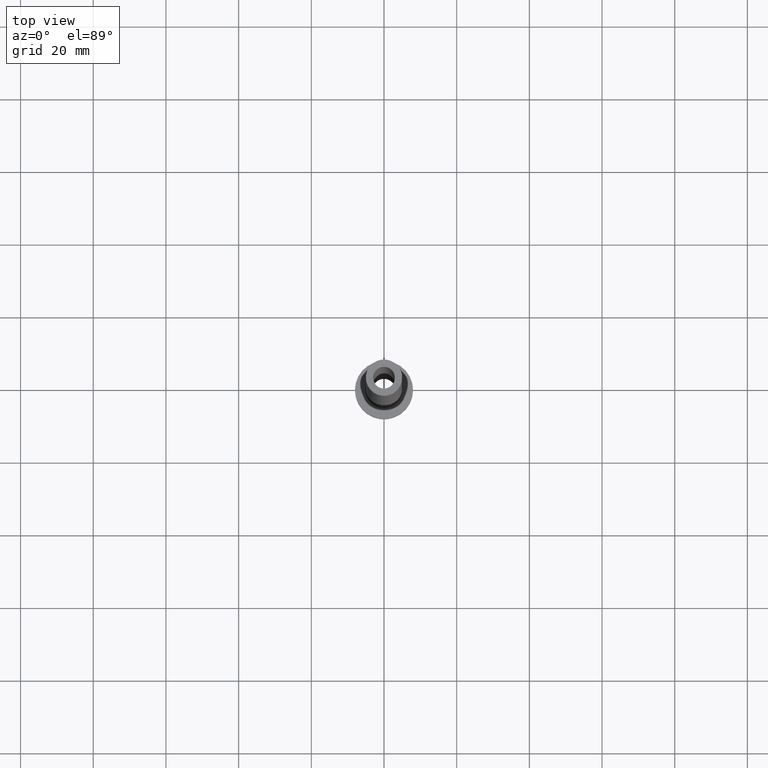
[diagram: clean part render]
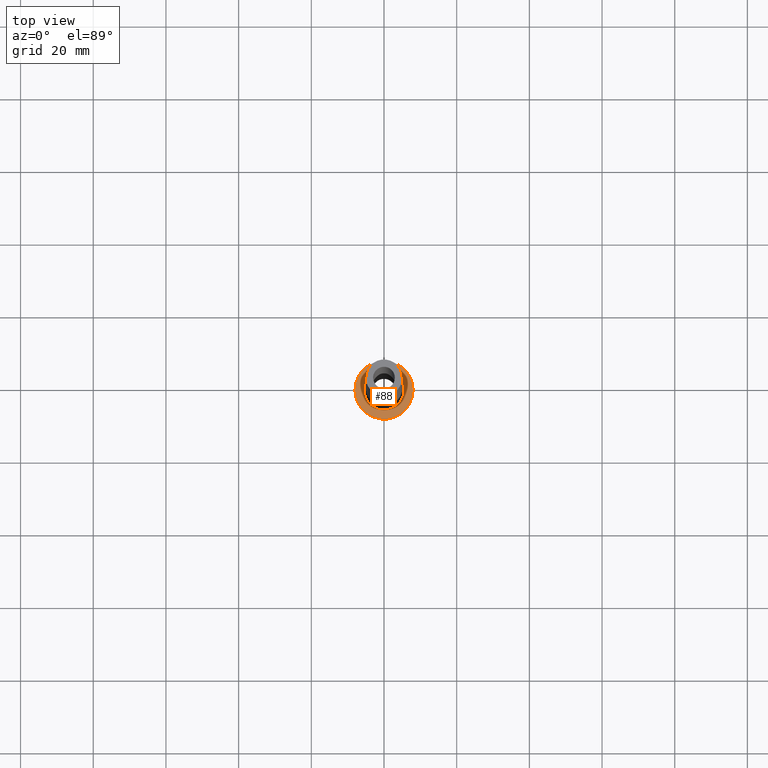
[diagram: same view with one face highlighted and labeled with its STEP entity id]
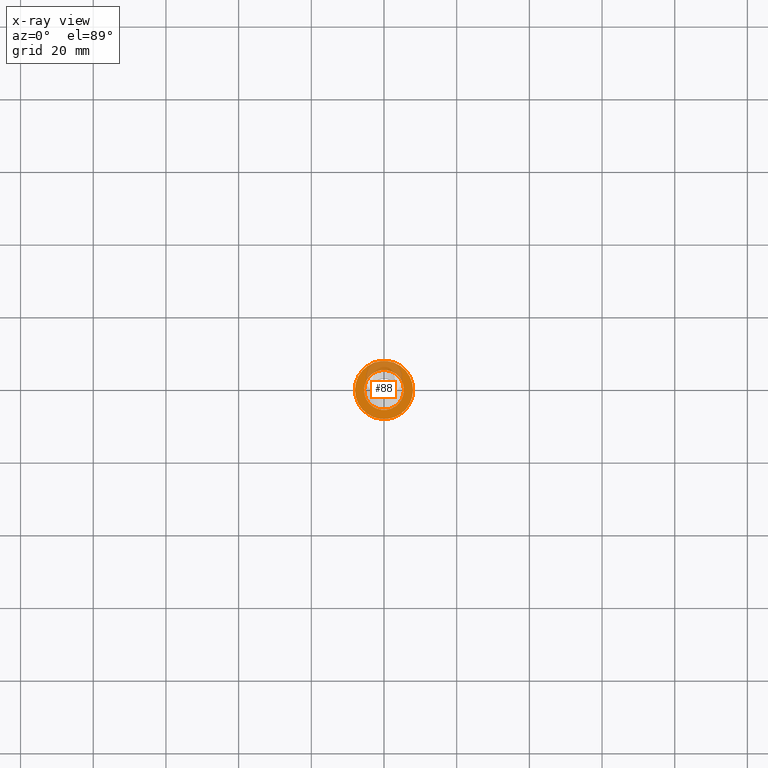
[diagram: x-ray of the same camera — body ghosted, the highlighted face saturated]
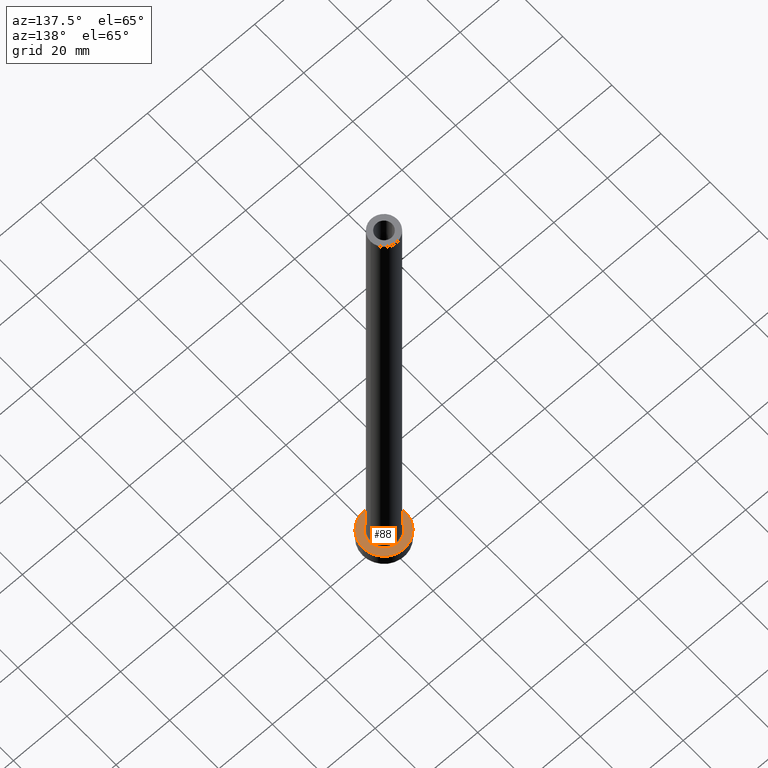
[diagram: same view with one face highlighted and labeled with its STEP entity id]
A machine part, top view. The second image highlights one B-rep face of the part: STEP entity #88.
The next image is the same camera in x-ray: the body ghosted, the highlighted face saturated — about 24% of this face is hidden behind the body in this view.
A second angle (auxiliary view) of the same face is appended — the face is thin or edge-on in the first view.
In plain terms, the highlighted planar face has unit normal (0, 0, 1).
Its self-contained STEP definition (entity closure, byte-faithful):
#21 = CIRCLE ( 'NONE', #181, 8.000000000000000000 ) ;
#25 = ORIENTED_EDGE ( 'NONE', *, *, #124, .T. ) ;
#35 = EDGE_LOOP ( 'NONE', ( #207, #93 ) ) ;
#42 = DIRECTION ( 'NONE',  ( -0.000000000000000000, -0.000000000000000000, -1.000000000000000000 ) ) ;
#57 = EDGE_CURVE ( 'NONE', #338, #125, #173, .T. ) ;
#85 = EDGE_CURVE ( 'NONE', #363, #91, #21, .T. ) ;
#88 = ADVANCED_FACE ( 'NONE', ( #142, #388 ), #150, .T. ) ;
#91 = VERTEX_POINT ( 'NONE', #255 ) ;
#93 = ORIENTED_EDGE ( 'NONE', *, *, #85, .T. ) ;
#101 = CARTESIAN_POINT ( 'NONE',  ( -5.500000000000000000, 6.735557395310442023E-16, 5.000000000000002665 ) ) ;
#107 = CARTESIAN_POINT ( 'NONE',  ( 0.000000000000000000, 0.000000000000000000, 5.000000000000000000 ) ) ;
#124 = EDGE_CURVE ( 'NONE', #125, #338, #135, .T. ) ;
#125 = VERTEX_POINT ( 'NONE', #101 ) ;
#135 = CIRCLE ( 'NONE', #417, 5.500000000000000000 ) ;
#139 = DIRECTION ( 'NONE',  ( 1.000000000000000000, 0.000000000000000000, 0.000000000000000000 ) ) ;
#142 = FACE_BOUND ( 'NONE', #345, .T. ) ;
#150 = PLANE ( 'NONE',  #215 ) ;
#153 = CARTESIAN_POINT ( 'NONE',  ( 0.000000000000000000, 0.000000000000000000, 5.000000000000000000 ) ) ;
#173 = CIRCLE ( 'NONE', #449, 5.500000000000000000 ) ;
#177 = CARTESIAN_POINT ( 'NONE',  ( 0.000000000000000000, 0.000000000000000000, 5.000000000000000000 ) ) ;
#181 = AXIS2_PLACEMENT_3D ( 'NONE', #325, #433, #139 ) ;
#198 = ORIENTED_EDGE ( 'NONE', *, *, #57, .T. ) ;
#207 = ORIENTED_EDGE ( 'NONE', *, *, #252, .T. ) ;
#211 = DIRECTION ( 'NONE',  ( 0.000000000000000000, 0.000000000000000000, 1.000000000000000000 ) ) ;
#215 = AXIS2_PLACEMENT_3D ( 'NONE', #177, #211, #319 ) ;
#224 = AXIS2_PLACEMENT_3D ( 'NONE', #153, #452, #450 ) ;
#248 = DIRECTION ( 'NONE',  ( 1.000000000000000000, 0.000000000000000000, 0.000000000000000000 ) ) ;
#252 = EDGE_CURVE ( 'NONE', #91, #363, #426, .T. ) ;
#255 = CARTESIAN_POINT ( 'NONE',  ( -8.000000000000000000, 0.000000000000000000, 5.000000000000000000 ) ) ;
#310 = CARTESIAN_POINT ( 'NONE',  ( 8.000000000000000000, 9.797174393178825657E-16, 5.000000000000000000 ) ) ;
#315 = CARTESIAN_POINT ( 'NONE',  ( 5.500000000000000000, 0.000000000000000000, 5.000000000000002665 ) ) ;
#319 = DIRECTION ( 'NONE',  ( 1.000000000000000000, 0.000000000000000000, -0.000000000000000000 ) ) ;
#325 = CARTESIAN_POINT ( 'NONE',  ( 0.000000000000000000, 0.000000000000000000, 5.000000000000000000 ) ) ;
#338 = VERTEX_POINT ( 'NONE', #315 ) ;
#345 = EDGE_LOOP ( 'NONE', ( #198, #25 ) ) ;
#363 = VERTEX_POINT ( 'NONE', #310 ) ;
#388 = FACE_OUTER_BOUND ( 'NONE', #35, .T. ) ;
#417 = AXIS2_PLACEMENT_3D ( 'NONE', #434, #42, #423 ) ;
#423 = DIRECTION ( 'NONE',  ( 1.000000000000000000, 0.000000000000000000, 0.000000000000000000 ) ) ;
#426 = CIRCLE ( 'NONE', #224, 8.000000000000000000 ) ;
#433 = DIRECTION ( 'NONE',  ( 0.000000000000000000, 0.000000000000000000, 1.000000000000000000 ) ) ;
#434 = CARTESIAN_POINT ( 'NONE',  ( 0.000000000000000000, 0.000000000000000000, 5.000000000000000000 ) ) ;
#449 = AXIS2_PLACEMENT_3D ( 'NONE', #107, #458, #248 ) ;
#450 = DIRECTION ( 'NONE',  ( 1.000000000000000000, 0.000000000000000000, 0.000000000000000000 ) ) ;
#452 = DIRECTION ( 'NONE',  ( 0.000000000000000000, 0.000000000000000000, 1.000000000000000000 ) ) ;
#458 = DIRECTION ( 'NONE',  ( -0.000000000000000000, -0.000000000000000000, -1.000000000000000000 ) ) ;